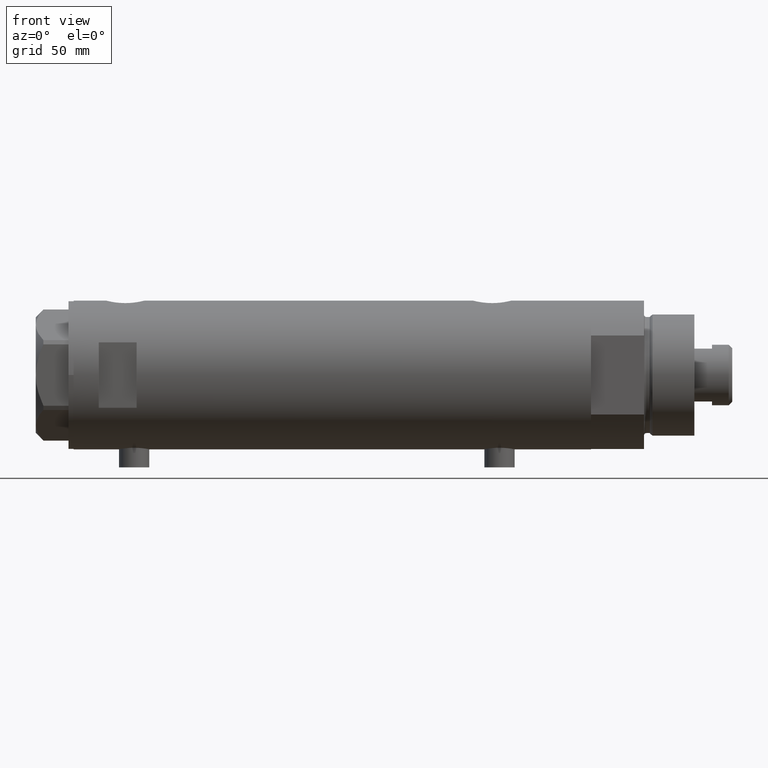
[diagram: clean part render]
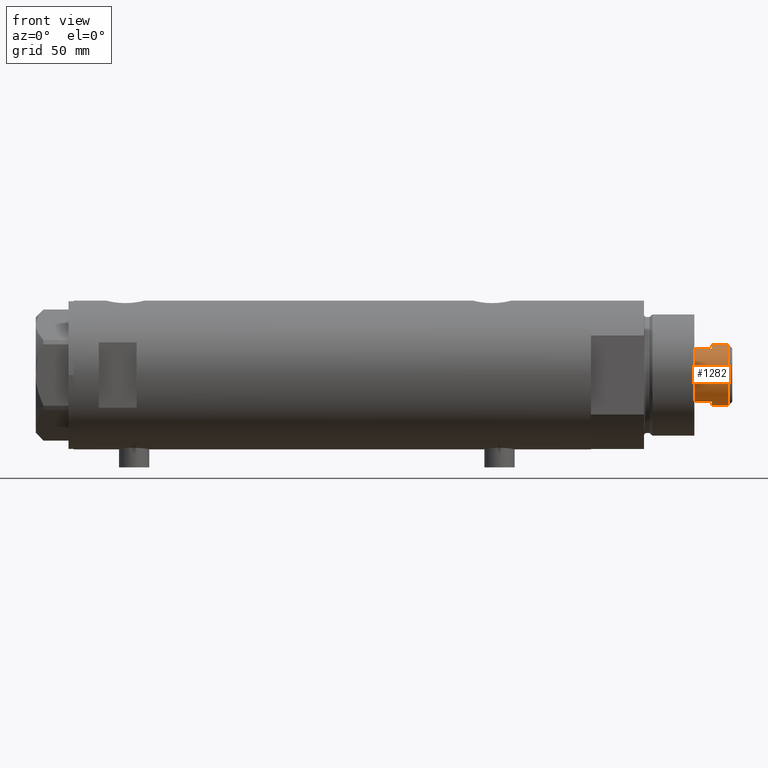
[diagram: same view with one face highlighted and labeled with its STEP entity id]
A machine part, front view. The second image highlights one B-rep face of the part: STEP entity #1282.
In plain terms, the highlighted cylindrical surface (edge-blend (fillet) strip) has radius 12 mm, axis along (-1, -0, 0).
Its self-contained STEP definition (entity closure, byte-faithful):
#28 = VECTOR ( 'NONE', #3725, 1000.000000000000000 ) ;
#69 = VERTEX_POINT ( 'NONE', #442 ) ;
#145 = CARTESIAN_POINT ( 'NONE',  ( -12.00000000000000000, 0.000000000000000000, 236.3000000000000682 ) ) ;
#341 = LINE ( 'NONE', #1700, #3798 ) ;
#346 = ORIENTED_EDGE ( 'NONE', *, *, #1716, .T. ) ;
#382 = DIRECTION ( 'NONE',  ( 1.000000000000000000, 0.000000000000000000, 0.000000000000000000 ) ) ;
#442 = CARTESIAN_POINT ( 'NONE',  ( 12.00000000000000000, 1.469576158976823947E-15, 236.3000000000000682 ) ) ;
#520 = ORIENTED_EDGE ( 'NONE', *, *, #1739, .T. ) ;
#692 = DIRECTION ( 'NONE',  ( 0.000000000000000000, 0.000000000000000000, -1.000000000000000000 ) ) ;
#718 = EDGE_CURVE ( 'NONE', #1365, #4039, #2428, .T. ) ;
#758 = DIRECTION ( 'NONE',  ( -0.000000000000000000, -0.000000000000000000, -1.000000000000000000 ) ) ;
#761 = AXIS2_PLACEMENT_3D ( 'NONE', #2070, #4147, #1043 ) ;
#822 = EDGE_CURVE ( 'NONE', #1365, #4109, #3752, .T. ) ;
#834 = CIRCLE ( 'NONE', #3585, 12.00000000000000178 ) ;
#1005 = CARTESIAN_POINT ( 'NONE',  ( 10.48861764008966446, -5.829999999999997407, 229.7000000000000171 ) ) ;
#1020 = DIRECTION ( 'NONE',  ( 1.000000000000000000, 0.000000000000000000, 0.000000000000000000 ) ) ;
#1043 = DIRECTION ( 'NONE',  ( -1.000000000000000000, 0.000000000000000000, 0.000000000000000000 ) ) ;
#1089 = VERTEX_POINT ( 'NONE', #145 ) ;
#1142 = EDGE_CURVE ( 'NONE', #3782, #3607, #834, .T. ) ;
#1199 = CIRCLE ( 'NONE', #2589, 12.00000000000000000 ) ;
#1239 = CARTESIAN_POINT ( 'NONE',  ( -10.48861764008966091, -5.830000000000003624, 229.7000000000000171 ) ) ;
#1252 = AXIS2_PLACEMENT_3D ( 'NONE', #1591, #692, #1866 ) ;
#1282 = ADVANCED_FACE ( 'NONE', ( #2774 ), #4124, .T. ) ;
#1291 = CARTESIAN_POINT ( 'NONE',  ( -10.48861764008966091, -5.830000000000000959, 229.7000000000000171 ) ) ;
#1336 = CARTESIAN_POINT ( 'NONE',  ( -10.48861764008966091, -5.830000000000078231, 222.7000000000000171 ) ) ;
#1355 = LINE ( 'NONE', #3857, #2450 ) ;
#1365 = VERTEX_POINT ( 'NONE', #3445 ) ;
#1471 = VECTOR ( 'NONE', #2358, 1000.000000000000000 ) ;
#1492 = EDGE_LOOP ( 'NONE', ( #4333, #520, #1713, #1789, #346, #1779, #1558, #2040 ) ) ;
#1558 = ORIENTED_EDGE ( 'NONE', *, *, #822, .F. ) ;
#1591 = CARTESIAN_POINT ( 'NONE',  ( 0.000000000000000000, 0.000000000000000000, 236.3000000000000682 ) ) ;
#1700 = CARTESIAN_POINT ( 'NONE',  ( -12.00000000000000000, 0.000000000000000000, 229.7000000000000171 ) ) ;
#1713 = ORIENTED_EDGE ( 'NONE', *, *, #2033, .T. ) ;
#1716 = EDGE_CURVE ( 'NONE', #3607, #1725, #4011, .T. ) ;
#1725 = VERTEX_POINT ( 'NONE', #1336 ) ;
#1739 = EDGE_CURVE ( 'NONE', #69, #1089, #3224, .T. ) ;
#1779 = ORIENTED_EDGE ( 'NONE', *, *, #2866, .T. ) ;
#1789 = ORIENTED_EDGE ( 'NONE', *, *, #1142, .T. ) ;
#1866 = DIRECTION ( 'NONE',  ( 1.000000000000000000, 0.000000000000000000, 0.000000000000000000 ) ) ;
#2033 = EDGE_CURVE ( 'NONE', #1089, #3782, #341, .T. ) ;
#2040 = ORIENTED_EDGE ( 'NONE', *, *, #718, .T. ) ;
#2070 = CARTESIAN_POINT ( 'NONE',  ( 0.000000000000000000, 0.000000000000000000, 229.7000000000000171 ) ) ;
#2107 = CARTESIAN_POINT ( 'NONE',  ( 0.000000000000000000, 0.000000000000000000, 229.7000000000000171 ) ) ;
#2358 = DIRECTION ( 'NONE',  ( -0.000000000000000000, -0.000000000000000000, -1.000000000000000000 ) ) ;
#2403 = CARTESIAN_POINT ( 'NONE',  ( 12.00000000000000355, 1.469576158976824342E-15, 229.7000000000000171 ) ) ;
#2428 = CIRCLE ( 'NONE', #2506, 12.00000000000000178 ) ;
#2450 = VECTOR ( 'NONE', #758, 1000.000000000000000 ) ;
#2454 = DIRECTION ( 'NONE',  ( 1.000000000000000000, 0.000000000000000000, 0.000000000000000000 ) ) ;
#2506 = AXIS2_PLACEMENT_3D ( 'NONE', #2107, #2509, #382 ) ;
#2509 = DIRECTION ( 'NONE',  ( 0.000000000000000000, 0.000000000000000000, 1.000000000000000000 ) ) ;
#2589 = AXIS2_PLACEMENT_3D ( 'NONE', #2781, #4225, #1020 ) ;
#2774 = FACE_OUTER_BOUND ( 'NONE', #1492, .T. ) ;
#2781 = CARTESIAN_POINT ( 'NONE',  ( 0.000000000000000000, 0.000000000000000000, 222.7000000000000171 ) ) ;
#2866 = EDGE_CURVE ( 'NONE', #1725, #4109, #1199, .T. ) ;
#3224 = CIRCLE ( 'NONE', #1252, 12.00000000000000000 ) ;
#3322 = EDGE_CURVE ( 'NONE', #69, #4039, #1355, .T. ) ;
#3438 = CARTESIAN_POINT ( 'NONE',  ( 0.000000000000000000, 0.000000000000000000, 229.7000000000000171 ) ) ;
#3445 = CARTESIAN_POINT ( 'NONE',  ( 10.48861764008966446, -5.829999999999997407, 229.7000000000000171 ) ) ;
#3456 = CARTESIAN_POINT ( 'NONE',  ( 10.48861764008966269, -5.830000000000073790, 222.7000000000000171 ) ) ;
#3585 = AXIS2_PLACEMENT_3D ( 'NONE', #3438, #3793, #2454 ) ;
#3607 = VERTEX_POINT ( 'NONE', #1239 ) ;
#3725 = DIRECTION ( 'NONE',  ( -0.000000000000000000, -0.000000000000000000, -1.000000000000000000 ) ) ;
#3752 = LINE ( 'NONE', #1005, #28 ) ;
#3779 = CARTESIAN_POINT ( 'NONE',  ( -12.00000000000000355, 0.000000000000000000, 229.7000000000000171 ) ) ;
#3782 = VERTEX_POINT ( 'NONE', #3779 ) ;
#3793 = DIRECTION ( 'NONE',  ( 0.000000000000000000, 0.000000000000000000, 1.000000000000000000 ) ) ;
#3798 = VECTOR ( 'NONE', #4249, 1000.000000000000000 ) ;
#3857 = CARTESIAN_POINT ( 'NONE',  ( 12.00000000000000000, 1.469576158976823947E-15, 229.7000000000000171 ) ) ;
#4011 = LINE ( 'NONE', #1291, #1471 ) ;
#4039 = VERTEX_POINT ( 'NONE', #2403 ) ;
#4109 = VERTEX_POINT ( 'NONE', #3456 ) ;
#4124 = CYLINDRICAL_SURFACE ( 'NONE', #761, 12.00000000000000000 ) ;
#4147 = DIRECTION ( 'NONE',  ( -0.000000000000000000, -0.000000000000000000, -1.000000000000000000 ) ) ;
#4225 = DIRECTION ( 'NONE',  ( 0.000000000000000000, 0.000000000000000000, 1.000000000000000000 ) ) ;
#4249 = DIRECTION ( 'NONE',  ( -0.000000000000000000, -0.000000000000000000, -1.000000000000000000 ) ) ;
#4333 = ORIENTED_EDGE ( 'NONE', *, *, #3322, .F. ) ;